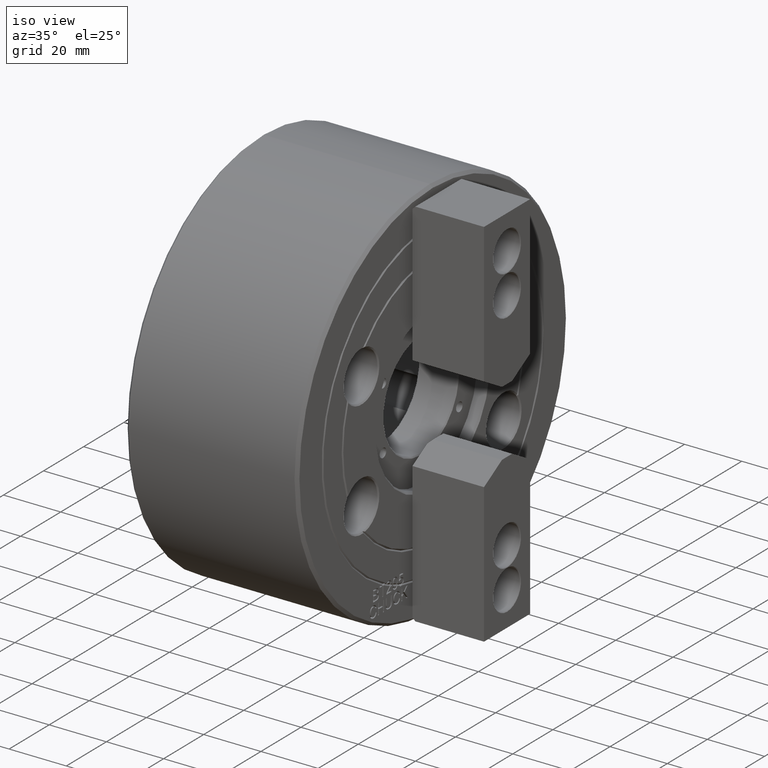
[diagram: clean part render]
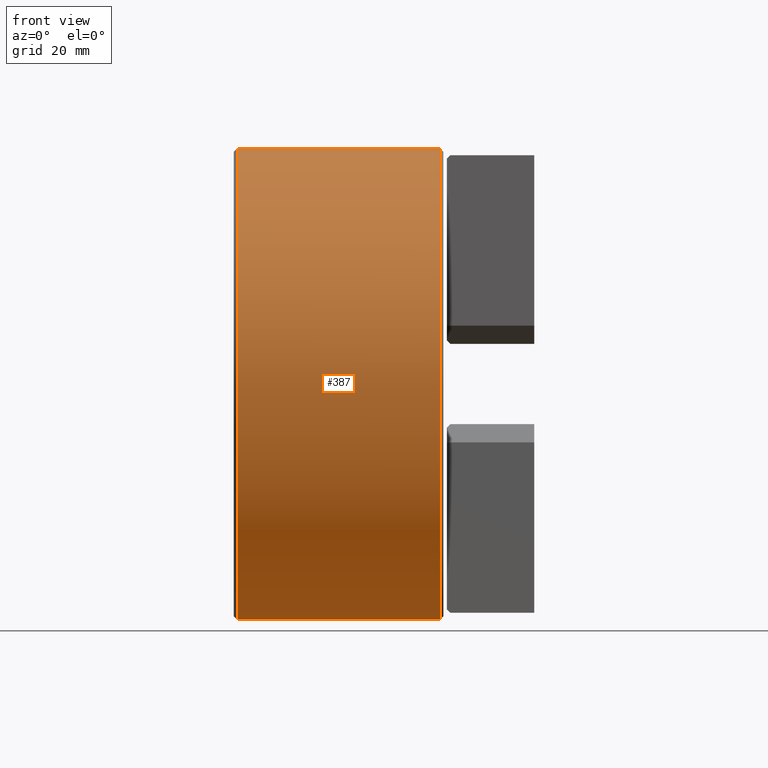
[diagram: tour spotlight — one face highlighted and labeled with its STEP entity id]
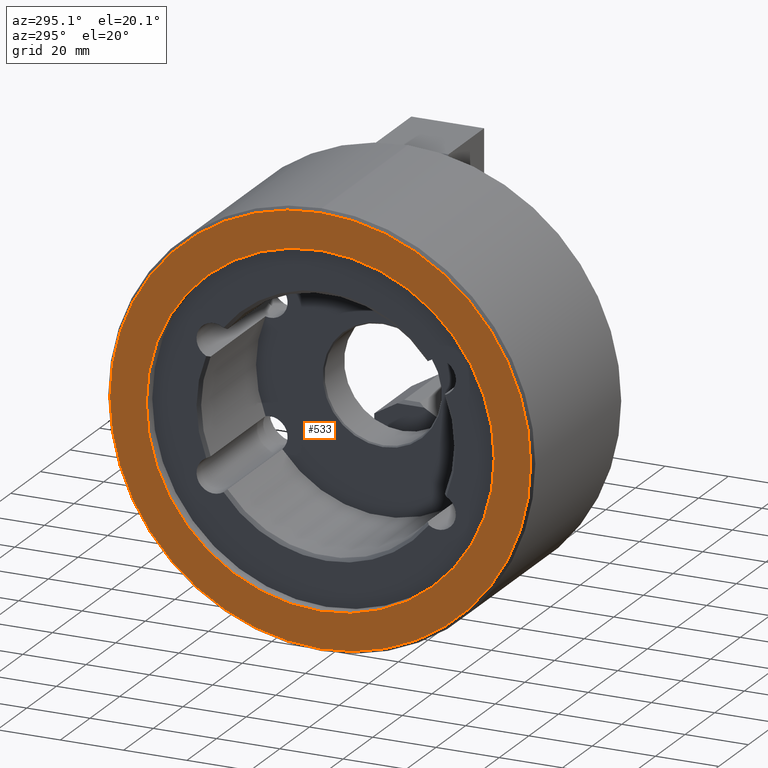
[diagram: tour spotlight — one face highlighted and labeled with its STEP entity id]
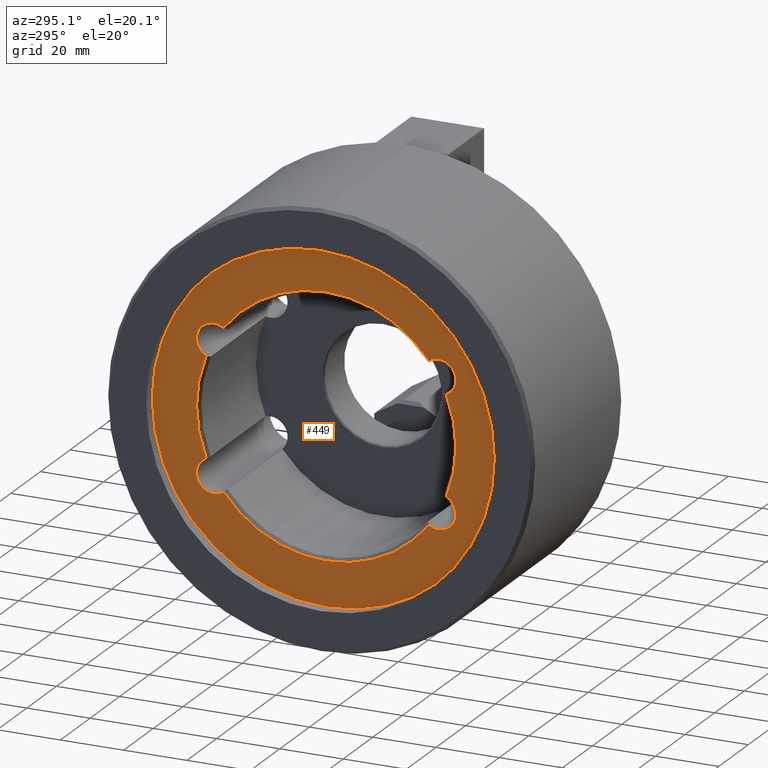
[diagram: tour spotlight — one face highlighted and labeled with its STEP entity id]
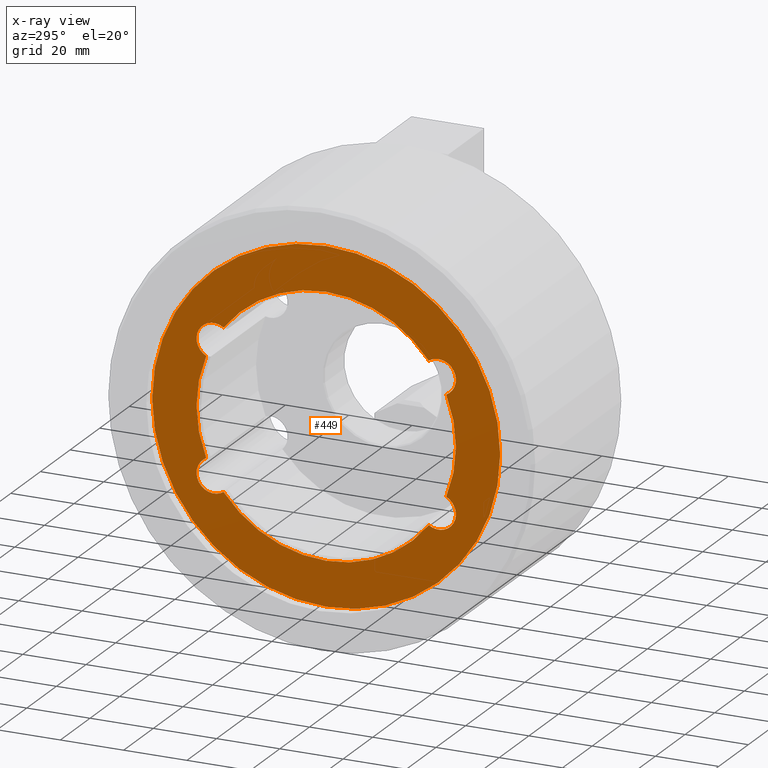
[diagram: x-ray of the same camera — body ghosted, this tour face saturated]
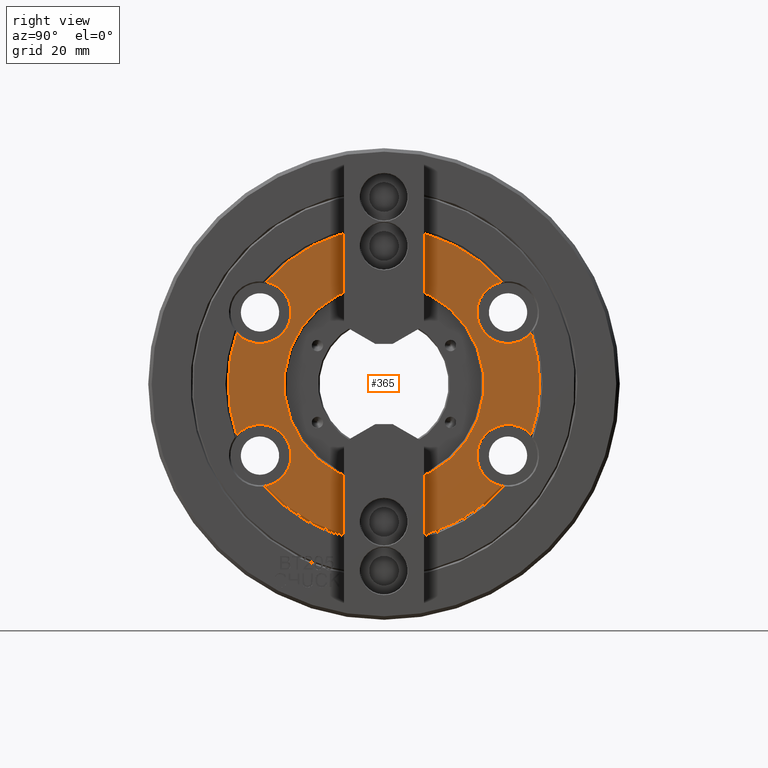
[diagram: tour spotlight — one face highlighted and labeled with its STEP entity id]
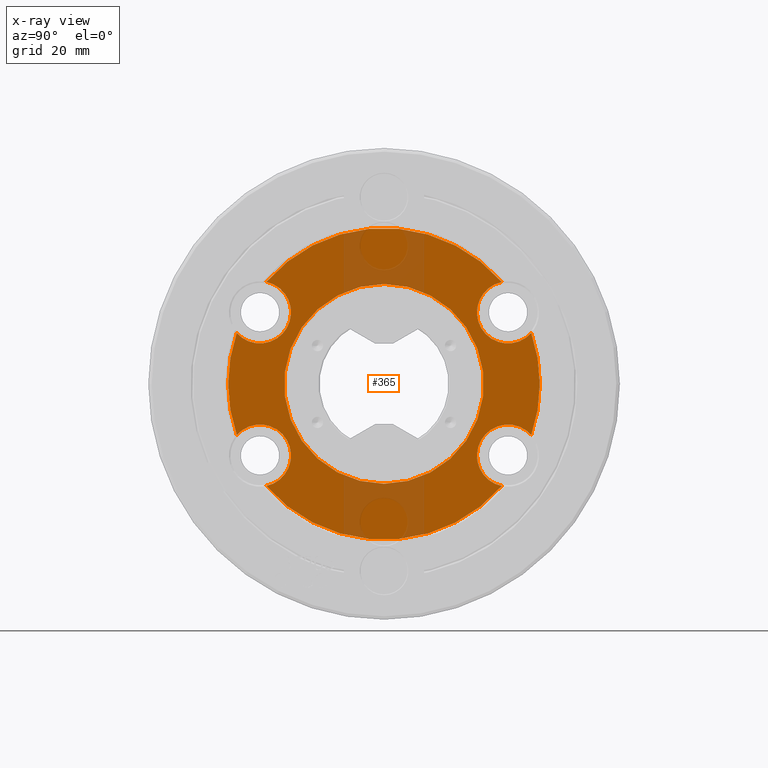
[diagram: x-ray of the same camera — body ghosted, this tour face saturated]
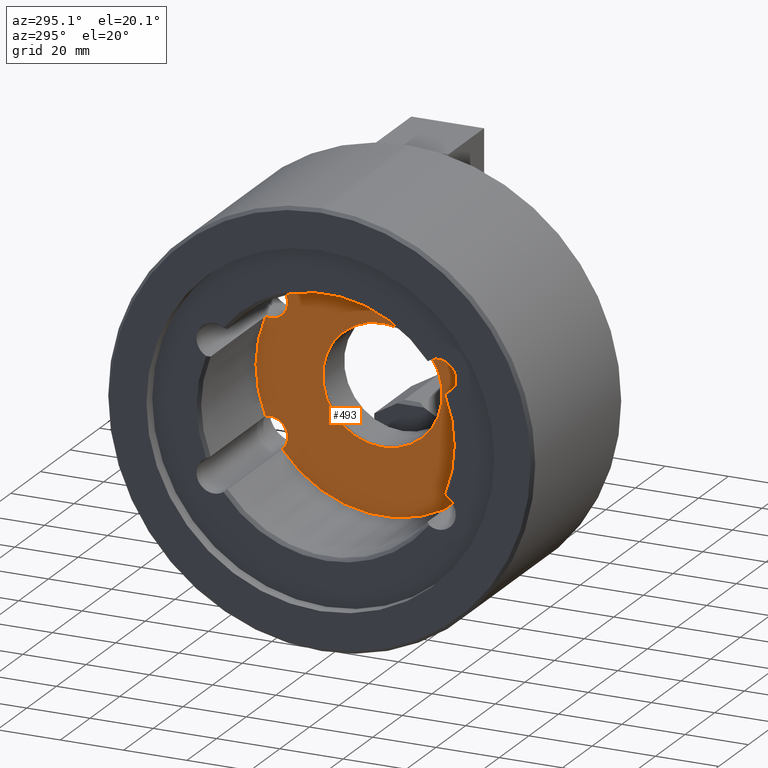
[diagram: tour spotlight — one face highlighted and labeled with its STEP entity id]
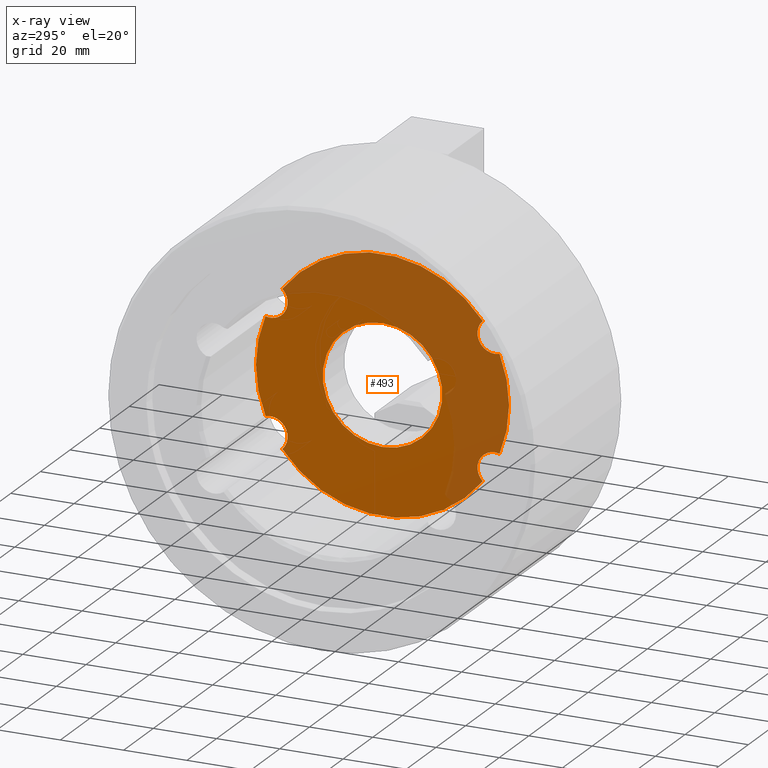
[diagram: x-ray of the same camera — body ghosted, this tour face saturated]
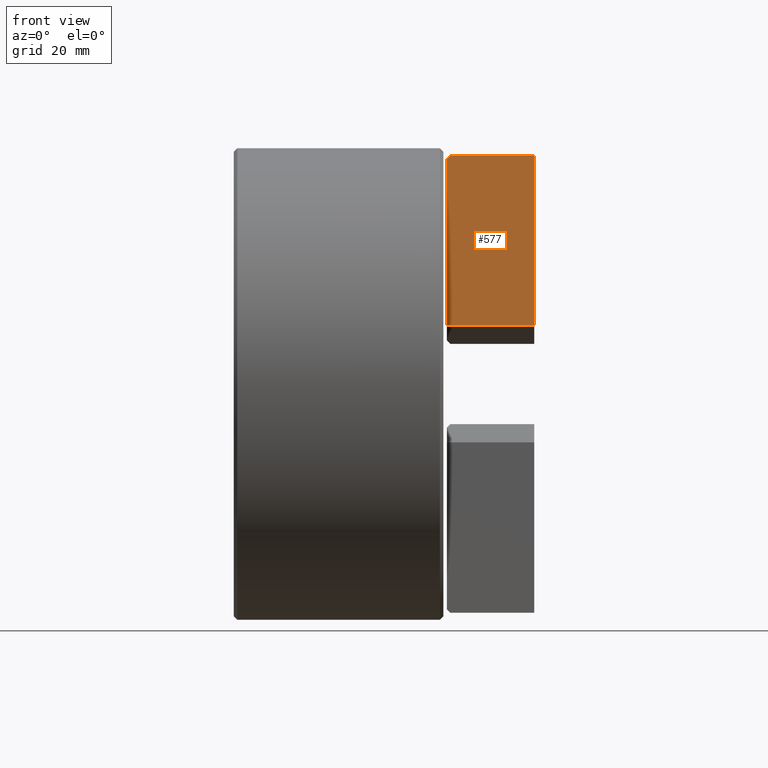
[diagram: tour spotlight — one face highlighted and labeled with its STEP entity id]
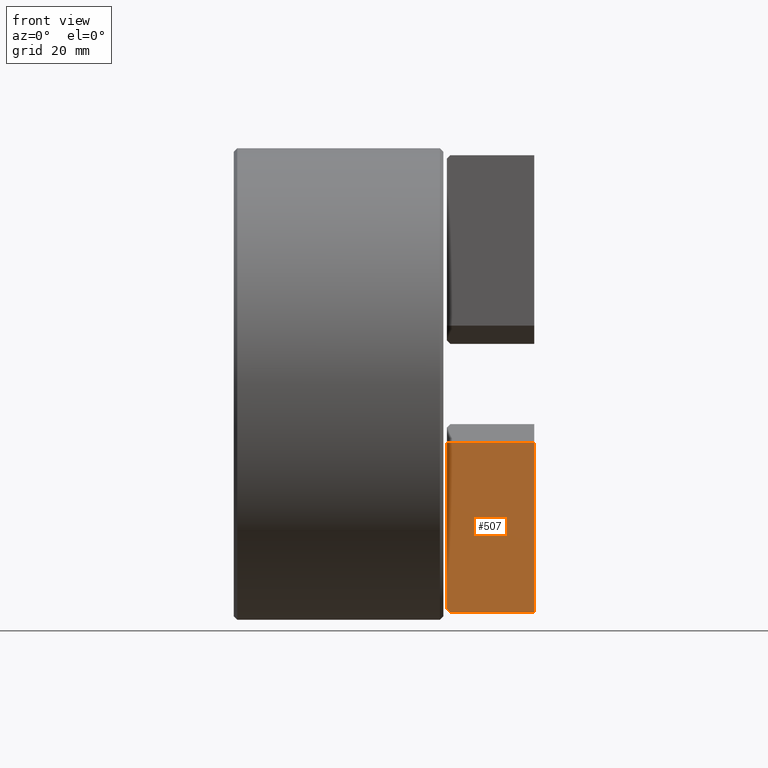
[diagram: tour spotlight — one face highlighted and labeled with its STEP entity id]
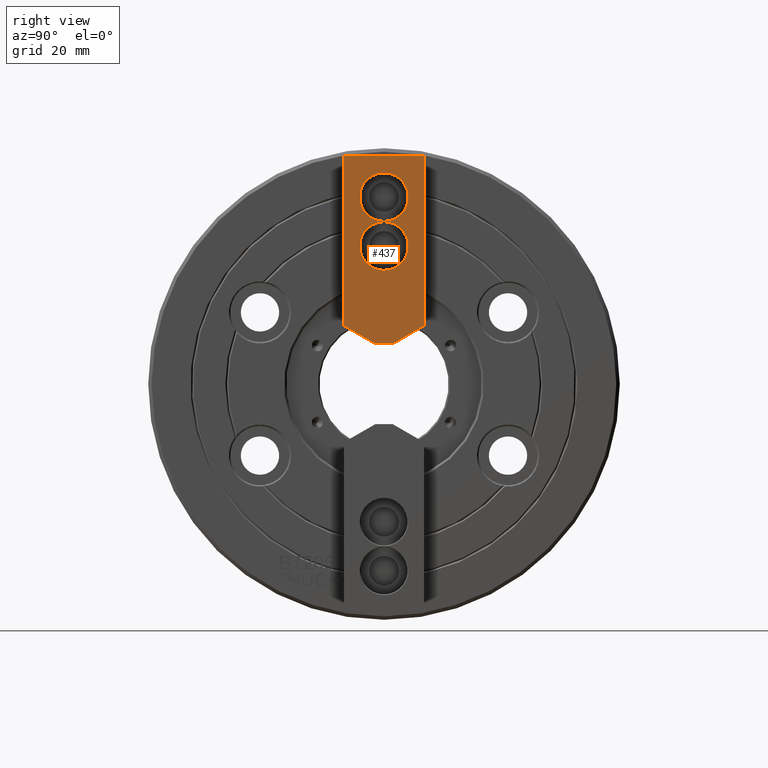
[diagram: tour spotlight — one face highlighted and labeled with its STEP entity id]
A machine part: a face-by-face anatomy tour. The part has 195 B-rep faces; the first image is the clean iso view, then the 8 largest visible faces are spotlighted one at a time (largest first), each with its STEP entity span.

Face 1 — front view, entity #387. In plain terms, the highlighted cylindrical surface (bore or boss wall) has radius 67.5 mm, axis along (1, -0, 0).
Definition (entity closure, byte-faithful):
#387 = ADVANCED_FACE( '', ( #904, #905 ), #906, .T. );
#904 = FACE_OUTER_BOUND( '', #1584, .T. );
#905 = FACE_OUTER_BOUND( '', #1585, .T. );
#906 = CYLINDRICAL_SURFACE( '', #1586, 67.5000000000000 );
#1584 = EDGE_LOOP( '', ( #2716 ) );
#1585 = EDGE_LOOP( '', ( #2717 ) );
#1586 = AXIS2_PLACEMENT_3D( '', #2718, #2719, #2720 );
#2716 = ORIENTED_EDGE( '', *, *, #4309, .T. );
#2717 = ORIENTED_EDGE( '', *, *, #4010, .F. );
#2718 = CARTESIAN_POINT( '', ( -60.0075000000000, 0.000000000000000, -1.54074395550979E-030 ) );
#2719 = DIRECTION( '', ( 1.00000000000000, -0.000000000000000, 1.28379282215539E-032 ) );
#2720 = DIRECTION( '', ( -1.28379282215539E-032, 0.000000000000000, 1.00000000000000 ) );
#4010 = EDGE_CURVE( '', #4655, #4655, #4656, .T. );
#4309 = EDGE_CURVE( '', #5140, #5140, #5141, .T. );
#4655 = VERTEX_POINT( '', #5588 );
#4656 = CIRCLE( '', #5589, 67.5000000000000 );
#5140 = VERTEX_POINT( '', #6660 );
#5141 = CIRCLE( '', #6661, 67.5000000000000 );
#5588 = CARTESIAN_POINT( '', ( -29.0000000000000, 0.000000000000000, 67.5000000000000 ) );
#5589 = AXIS2_PLACEMENT_3D( '', #7684, #7685, #7686 );
#6660 = CARTESIAN_POINT( '', ( 29.0000000000000, 0.000000000000000, 67.5000000000000 ) );
#6661 = AXIS2_PLACEMENT_3D( '', #7926, #7927, #7928 );
#7684 = CARTESIAN_POINT( '', ( -29.0000000000000, 0.000000000000000, -1.14267189617996E-030 ) );
#7685 = DIRECTION( '', ( -1.00000000000000, 0.000000000000000, -1.28379282215539E-032 ) );
#7686 = DIRECTION( '', ( -1.28379282215539E-032, 0.000000000000000, 1.00000000000000 ) );
#7926 = CARTESIAN_POINT( '', ( 29.0000000000000, 0.000000000000000, -3.98072059329832E-031 ) );
#7927 = DIRECTION( '', ( -1.00000000000000, 0.000000000000000, -1.28379282215539E-032 ) );
#7928 = DIRECTION( '', ( -1.28379282215539E-032, 0.000000000000000, 1.00000000000000 ) );

Face 2 — auxiliary view, entity #533. In plain terms, the highlighted planar face has unit normal (-1, 0, -0).
Definition (entity closure, byte-faithful):
#533 = ADVANCED_FACE( '', ( #1155, #1156 ), #1157, .T. );
#1155 = FACE_OUTER_BOUND( '', #1841, .T. );
#1156 = FACE_BOUND( '', #1842, .T. );
#1157 = PLANE( '', #1843 );
#1841 = EDGE_LOOP( '', ( #3496 ) );
#1842 = EDGE_LOOP( '', ( #3497 ) );
#1843 = AXIS2_PLACEMENT_3D( '', #3498, #3499, #3500 );
#3496 = ORIENTED_EDGE( '', *, *, #4011, .T. );
#3497 = ORIENTED_EDGE( '', *, *, #4547, .F. );
#3498 = CARTESIAN_POINT( '', ( -29.9985463069267, 0.000000000000000, 55.0000000000000 ) );
#3499 = DIRECTION( '', ( -1.00000000000000, 0.000000000000000, -1.28379282215539E-032 ) );
#3500 = DIRECTION( '', ( -1.28379282215539E-032, 0.000000000000000, 1.00000000000000 ) );
#4011 = EDGE_CURVE( '', #4657, #4657, #4658, .T. );
#4547 = EDGE_CURVE( '', #5467, #5467, #5468, .T. );
#4657 = VERTEX_POINT( '', #5590 );
#4658 = CIRCLE( '', #5591, 66.5000000000000 );
#5467 = VERTEX_POINT( '', #7471 );
#5468 = CIRCLE( '', #7472, 55.0000000000000 );
#5590 = CARTESIAN_POINT( '', ( -29.9985463069267, 0.000000000000000, 66.5000000000000 ) );
#5591 = AXIS2_PLACEMENT_3D( '', #7687, #7688, #7689 );
#7471 = CARTESIAN_POINT( '', ( -29.9985463069267, 0.000000000000000, 55.0000000000000 ) );
#7472 = AXIS2_PLACEMENT_3D( '', #8101, #8102, #8103 );
#7687 = CARTESIAN_POINT( '', ( -29.9985463069267, 0.000000000000000, -1.15549116199418E-030 ) );
#7688 = DIRECTION( '', ( -1.00000000000000, 0.000000000000000, -1.28379282215539E-032 ) );
#7689 = DIRECTION( '', ( -1.28379282215539E-032, 0.000000000000000, 1.00000000000000 ) );
#8101 = CARTESIAN_POINT( '', ( -29.9985463069267, 0.000000000000000, -1.15549116199418E-030 ) );
#8102 = DIRECTION( '', ( -1.00000000000000, 0.000000000000000, -1.28379282215539E-032 ) );
#8103 = DIRECTION( '', ( -1.28379282215539E-032, 0.000000000000000, 1.00000000000000 ) );

Face 3 — auxiliary view, entity #449. An x-ray twin of the same camera follows (body ghosted, this face saturated) — the face is partly hidden behind the body. In plain terms, the highlighted planar face has unit normal (-1, 0, -0).
Definition (entity closure, byte-faithful):
#449 = ADVANCED_FACE( '', ( #1007, #1008 ), #1009, .T. );
#1007 = FACE_BOUND( '', #1690, .T. );
#1008 = FACE_OUTER_BOUND( '', #1691, .T. );
#1009 = PLANE( '', #1692 );
#1690 = EDGE_LOOP( '', ( #3034, #3035, #3036, #3037, #3038, #3039, #3040, #3041 ) );
#1691 = EDGE_LOOP( '', ( #3042 ) );
#1692 = AXIS2_PLACEMENT_3D( '', #3043, #3044, #3045 );
#3034 = ORIENTED_EDGE( '', *, *, #4422, .F. );
#3035 = ORIENTED_EDGE( '', *, *, #4423, .T. );
#3036 = ORIENTED_EDGE( '', *, *, #4424, .F. );
#3037 = ORIENTED_EDGE( '', *, *, #4425, .T. );
#3038 = ORIENTED_EDGE( '', *, *, #4385, .F. );
#3039 = ORIENTED_EDGE( '', *, *, #4426, .T. );
#3040 = ORIENTED_EDGE( '', *, *, #4427, .F. );
#3041 = ORIENTED_EDGE( '', *, *, #4428, .T. );
#3042 = ORIENTED_EDGE( '', *, *, #4429, .T. );
#3043 = CARTESIAN_POINT( '', ( -25.9985463069267, 0.000000000000000, 41.0000000000000 ) );
#3044 = DIRECTION( '', ( -1.00000000000000, 0.000000000000000, -1.28379282215539E-032 ) );
#3045 = DIRECTION( '', ( -1.28379282215539E-032, 0.000000000000000, 1.00000000000000 ) );
#4385 = EDGE_CURVE( '', #5254, #5255, #5256, .T. );
#4422 = EDGE_CURVE( '', #5305, #5306, #5307, .T. );
#4423 = EDGE_CURVE( '', #5305, #5308, #5309, .T. );
#4424 = EDGE_CURVE( '', #5310, #5308, #5311, .T. );
#4425 = EDGE_CURVE( '', #5310, #5255, #5312, .T. );
#4426 = EDGE_CURVE( '', #5254, #5313, #5314, .T. );
#4427 = EDGE_CURVE( '', #5315, #5313, #5316, .T. );
#4428 = EDGE_CURVE( '', #5315, #5306, #5317, .T. );
#4429 = EDGE_CURVE( '', #5318, #5318, #5319, .T. );
#5254 = VERTEX_POINT( '', #6932 );
#5255 = VERTEX_POINT( '', #6933 );
#5256 = CIRCLE( '', #6934, 41.0000000000000 );
#5305 = VERTEX_POINT( '', #7039 );
#5306 = VERTEX_POINT( '', #7040 );
#5307 = CIRCLE( '', #7041, 41.0000000000000 );
#5308 = VERTEX_POINT( '', #7042 );
#5309 = CIRCLE( '', #7043, 5.50000000000000 );
#5310 = VERTEX_POINT( '', #7044 );
#5311 = CIRCLE( '', #7045, 41.0000000000000 );
#5312 = CIRCLE( '', #7046, 5.50000000000000 );
#5313 = VERTEX_POINT( '', #7047 );
#5314 = CIRCLE( '', #7048, 5.50000000000000 );
#5315 = VERTEX_POINT( '', #7049 );
#5316 = CIRCLE( '', #7050, 41.0000000000000 );
#5317 = CIRCLE( '', #7051, 5.50000000000000 );
#5318 = VERTEX_POINT( '', #7052 );
#5319 = CIRCLE( '', #7053, 55.0000000000000 );
#6932 = CARTESIAN_POINT( '', ( -25.9985463069267, -32.4437555084688, 25.0679621929407 ) );
#6933 = CARTESIAN_POINT( '', ( -25.9985463069267, 32.4437555084688, 25.0679621929406 ) );
#6934 = AXIS2_PLACEMENT_3D( '', #7991, #7992, #7993 );
#7039 = CARTESIAN_POINT( '', ( -25.9985463069267, 32.4437555084688, -25.0679621929406 ) );
#7040 = CARTESIAN_POINT( '', ( -25.9985463069267, -32.4437555084688, -25.0679621929406 ) );
#7041 = AXIS2_PLACEMENT_3D( '', #8015, #8016, #8017 );
#7042 = CARTESIAN_POINT( '', ( -25.9985463069267, 37.9313698344289, -15.5631353680350 ) );
#7043 = AXIS2_PLACEMENT_3D( '', #8018, #8019, #8020 );
#7044 = CARTESIAN_POINT( '', ( -25.9985463069267, 37.9313698344289, 15.5631353680350 ) );
#7045 = AXIS2_PLACEMENT_3D( '', #8021, #8022, #8023 );
#7046 = AXIS2_PLACEMENT_3D( '', #8024, #8025, #8026 );
#7047 = CARTESIAN_POINT( '', ( -25.9985463069267, -37.9313698344289, 15.5631353680350 ) );
#7048 = AXIS2_PLACEMENT_3D( '', #8027, #8028, #8029 );
#7049 = CARTESIAN_POINT( '', ( -25.9985463069267, -37.9313698344289, -15.5631353680350 ) );
#7050 = AXIS2_PLACEMENT_3D( '', #8030, #8031, #8032 );
#7051 = AXIS2_PLACEMENT_3D( '', #8033, #8034, #8035 );
#7052 = CARTESIAN_POINT( '', ( -25.9985463069267, 0.000000000000000, 55.0000000000000 ) );
#7053 = AXIS2_PLACEMENT_3D( '', #8036, #8037, #8038 );
#7991 = CARTESIAN_POINT( '', ( -25.9985463069267, 0.000000000000000, -1.10413944910796E-030 ) );
#7992 = DIRECTION( '', ( -1.00000000000000, 0.000000000000000, -1.28379282215539E-032 ) );
#7993 = DIRECTION( '', ( -1.28379282215539E-032, 0.000000000000000, 1.00000000000000 ) );
#8015 = CARTESIAN_POINT( '', ( -25.9985463069267, 0.000000000000000, -1.10413944910796E-030 ) );
#8016 = DIRECTION( '', ( -1.00000000000000, 0.000000000000000, -1.28379282215539E-032 ) );
#8017 = DIRECTION( '', ( -1.28379282215539E-032, 0.000000000000000, 1.00000000000000 ) );
#8018 = CARTESIAN_POINT( '', ( -25.9985463069267, 35.5070415551620, -20.5000000000000 ) );
#8019 = DIRECTION( '', ( 1.00000000000000, 0.000000000000000, 1.28379282215539E-032 ) );
#8020 = DIRECTION( '', ( 1.28379282215539E-032, 0.000000000000000, -1.00000000000000 ) );
#8021 = CARTESIAN_POINT( '', ( -25.9985463069267, 0.000000000000000, -1.10413944910796E-030 ) );
#8022 = DIRECTION( '', ( -1.00000000000000, 0.000000000000000, -1.28379282215539E-032 ) );
#8023 = DIRECTION( '', ( -1.28379282215539E-032, 0.000000000000000, 1.00000000000000 ) );
#8024 = CARTESIAN_POINT( '', ( -25.9985463069267, 35.5070415551620, 20.5000000000000 ) );
#8025 = DIRECTION( '', ( 1.00000000000000, 0.000000000000000, 1.28379282215539E-032 ) );
#8026 = DIRECTION( '', ( 1.28379282215539E-032, 0.000000000000000, -1.00000000000000 ) );
#8027 = CARTESIAN_POINT( '', ( -25.9985463069267, -35.5070415551620, 20.5000000000000 ) );
#8028 = DIRECTION( '', ( 1.00000000000000, -3.21436739558943E-064, 1.28379282215539E-032 ) );
#8029 = DIRECTION( '', ( -1.28379282215539E-032, 1.22460635382238E-016, 1.00000000000000 ) );
#8030 = CARTESIAN_POINT( '', ( -25.9985463069267, 0.000000000000000, -1.10413944910796E-030 ) );
#8031 = DIRECTION( '', ( -1.00000000000000, 0.000000000000000, -1.28379282215539E-032 ) );
#8032 = DIRECTION( '', ( -1.28379282215539E-032, 0.000000000000000, 1.00000000000000 ) );
#8033 = CARTESIAN_POINT( '', ( -25.9985463069267, -35.5070415551620, -20.5000000000000 ) );
#8034 = DIRECTION( '', ( 1.00000000000000, -3.21436739558943E-064, 1.28379282215539E-032 ) );
#8035 = DIRECTION( '', ( -1.28379282215539E-032, 1.22460635382238E-016, 1.00000000000000 ) );
#8036 = CARTESIAN_POINT( '', ( -25.9985463069267, 0.000000000000000, -1.10413944910796E-030 ) );
#8037 = DIRECTION( '', ( -1.00000000000000, 0.000000000000000, -1.28379282215539E-032 ) );
#8038 = DIRECTION( '', ( -1.28379282215539E-032, 0.000000000000000, 1.00000000000000 ) );

Face 4 — right view, entity #365. An x-ray twin of the same camera follows (body ghosted, this face saturated) — the face is partly hidden behind the body. In plain terms, the highlighted planar face has unit normal (1, 0, 0).
Definition (entity closure, byte-faithful):
#365 = ADVANCED_FACE( '', ( #870, #871 ), #872, .T. );
#870 = FACE_OUTER_BOUND( '', #1550, .T. );
#871 = FACE_BOUND( '', #1551, .T. );
#872 = PLANE( '', #1552 );
#1550 = EDGE_LOOP( '', ( #2615, #2616, #2617, #2618, #2619, #2620, #2621, #2622 ) );
#1551 = EDGE_LOOP( '', ( #2623 ) );
#1552 = AXIS2_PLACEMENT_3D( '', #2624, #2625, #2626 );
#2615 = ORIENTED_EDGE( '', *, *, #4262, .F. );
#2616 = ORIENTED_EDGE( '', *, *, #4263, .T. );
#2617 = ORIENTED_EDGE( '', *, *, #4109, .F. );
#2618 = ORIENTED_EDGE( '', *, *, #4116, .T. );
#2619 = ORIENTED_EDGE( '', *, *, #4264, .F. );
#2620 = ORIENTED_EDGE( '', *, *, #4265, .T. );
#2621 = ORIENTED_EDGE( '', *, *, #4266, .F. );
#2622 = ORIENTED_EDGE( '', *, *, #4267, .T. );
#2623 = ORIENTED_EDGE( '', *, *, #4268, .T. );
#2624 = CARTESIAN_POINT( '', ( 30.0014536930733, 0.000000000000000, 44.6000000000000 ) );
#2625 = DIRECTION( '', ( 1.00000000000000, 0.000000000000000, 1.28379282215539E-032 ) );
#2626 = DIRECTION( '', ( 1.28379282215539E-032, 0.000000000000000, -1.00000000000000 ) );
#4109 = EDGE_CURVE( '', #4826, #4827, #4828, .T. );
#4116 = EDGE_CURVE( '', #4826, #4835, #4837, .F. );
#4262 = EDGE_CURVE( '', #5073, #5074, #5075, .T. );
#4263 = EDGE_CURVE( '', #5073, #4827, #5076, .F. );
#4264 = EDGE_CURVE( '', #5077, #4835, #5078, .T. );
#4265 = EDGE_CURVE( '', #5077, #5079, #5080, .F. );
#4266 = EDGE_CURVE( '', #5081, #5079, #5082, .T. );
#4267 = EDGE_CURVE( '', #5081, #5074, #5083, .F. );
#4268 = EDGE_CURVE( '', #5084, #5084, #5085, .T. );
#4826 = VERTEX_POINT( '', #5936 );
#4827 = VERTEX_POINT( '', #5937 );
#4828 = CIRCLE( '', #5938, 44.6000000000000 );
#4835 = VERTEX_POINT( '', #5951 );
#4837 = CIRCLE( '', #5956, 8.90000000000000 );
#5073 = VERTEX_POINT( '', #6557 );
#5074 = VERTEX_POINT( '', #6558 );
#5075 = CIRCLE( '', #6559, 44.6000000000000 );
#5076 = CIRCLE( '', #6560, 8.90000000000000 );
#5077 = VERTEX_POINT( '', #6561 );
#5078 = CIRCLE( '', #6562, 44.6000000000000 );
#5079 = VERTEX_POINT( '', #6563 );
#5080 = CIRCLE( '', #6564, 8.90000000000000 );
#5081 = VERTEX_POINT( '', #6565 );
#5082 = CIRCLE( '', #6566, 44.6000000000000 );
#5083 = CIRCLE( '', #6567, 8.90000000000000 );
#5084 = VERTEX_POINT( '', #6568 );
#5085 = CIRCLE( '', #6569, 28.6000000000000 );
#5936 = CARTESIAN_POINT( '', ( 30.0014536930733, 42.1503977591026, 14.5775158634603 ) );
#5937 = CARTESIAN_POINT( '', ( 30.0014536930733, 42.1503977591026, -14.5775158634603 ) );
#5938 = AXIS2_PLACEMENT_3D( '', #7782, #7783, #7784 );
#5951 = CARTESIAN_POINT( '', ( 30.0014536930733, 33.6996979413786, 29.2145573072713 ) );
#5956 = AXIS2_PLACEMENT_3D( '', #7788, #7789, #7790 );
#6557 = CARTESIAN_POINT( '', ( 30.0014536930733, 33.6996979413786, -29.2145573072713 ) );
#6558 = CARTESIAN_POINT( '', ( 30.0014536930733, -33.6996979413786, -29.2145573072713 ) );
#6559 = AXIS2_PLACEMENT_3D( '', #7894, #7895, #7896 );
#6560 = AXIS2_PLACEMENT_3D( '', #7897, #7898, #7899 );
#6561 = CARTESIAN_POINT( '', ( 30.0014536930733, -33.6996979413786, 29.2145573072713 ) );
#6562 = AXIS2_PLACEMENT_3D( '', #7900, #7901, #7902 );
#6563 = CARTESIAN_POINT( '', ( 30.0014536930733, -42.1503977591026, 14.5775158634603 ) );
#6564 = AXIS2_PLACEMENT_3D( '', #7903, #7904, #7905 );
#6565 = CARTESIAN_POINT( '', ( 30.0014536930733, -42.1503977591026, -14.5775158634603 ) );
#6566 = AXIS2_PLACEMENT_3D( '', #7906, #7907, #7908 );
#6567 = AXIS2_PLACEMENT_3D( '', #7909, #7910, #7911 );
#6568 = CARTESIAN_POINT( '', ( 30.0014536930733, 0.000000000000000, 28.6000000000000 ) );
#6569 = AXIS2_PLACEMENT_3D( '', #7912, #7913, #7914 );
#7782 = CARTESIAN_POINT( '', ( 30.0014536930733, 0.000000000000000, -3.85215468700947E-031 ) );
#7783 = DIRECTION( '', ( -1.00000000000000, 0.000000000000000, -1.28379282215539E-032 ) );
#7784 = DIRECTION( '', ( -1.28379282215539E-032, 0.000000000000000, 1.00000000000000 ) );
#7788 = CARTESIAN_POINT( '', ( 30.0014536930733, 35.5070415551620, 20.5000000000000 ) );
#7789 = DIRECTION( '', ( 1.00000000000000, 0.000000000000000, 1.28379282215539E-032 ) );
#7790 = DIRECTION( '', ( 1.28379282215539E-032, 0.000000000000000, -1.00000000000000 ) );
#7894 = CARTESIAN_POINT( '', ( 30.0014536930733, 0.000000000000000, -3.85215468700947E-031 ) );
#7895 = DIRECTION( '', ( -1.00000000000000, 0.000000000000000, -1.28379282215539E-032 ) );
#7896 = DIRECTION( '', ( -1.28379282215539E-032, 0.000000000000000, 1.00000000000000 ) );
#7897 = CARTESIAN_POINT( '', ( 30.0014536930733, 35.5070415551620, -20.5000000000000 ) );
#7898 = DIRECTION( '', ( 1.00000000000000, 0.000000000000000, 1.28379282215539E-032 ) );
#7899 = DIRECTION( '', ( 1.28379282215539E-032, 0.000000000000000, -1.00000000000000 ) );
#7900 = CARTESIAN_POINT( '', ( 30.0014536930733, 0.000000000000000, -3.85215468700947E-031 ) );
#7901 = DIRECTION( '', ( -1.00000000000000, 0.000000000000000, -1.28379282215539E-032 ) );
#7902 = DIRECTION( '', ( -1.28379282215539E-032, 0.000000000000000, 1.00000000000000 ) );
#7903 = CARTESIAN_POINT( '', ( 30.0014536930733, -35.5070415551620, 20.5000000000000 ) );
#7904 = DIRECTION( '', ( 1.00000000000000, 2.45510954971797E-064, 1.28379282215539E-032 ) );
#7905 = DIRECTION( '', ( -1.28379282215539E-032, 1.22460635382238E-016, 1.00000000000000 ) );
#7906 = CARTESIAN_POINT( '', ( 30.0014536930733, 0.000000000000000, -3.85215468700947E-031 ) );
#7907 = DIRECTION( '', ( -1.00000000000000, 0.000000000000000, -1.28379282215539E-032 ) );
#7908 = DIRECTION( '', ( -1.28379282215539E-032, 0.000000000000000, 1.00000000000000 ) );
#7909 = CARTESIAN_POINT( '', ( 30.0014536930733, -35.5070415551620, -20.5000000000000 ) );
#7910 = DIRECTION( '', ( 1.00000000000000, 2.45510954971797E-064, 1.28379282215539E-032 ) );
#7911 = DIRECTION( '', ( -1.28379282215539E-032, 1.22460635382238E-016, 1.00000000000000 ) );
#7912 = CARTESIAN_POINT( '', ( 30.0014536930733, 0.000000000000000, -3.85215468700947E-031 ) );
#7913 = DIRECTION( '', ( -1.00000000000000, 0.000000000000000, -1.28379282215539E-032 ) );
#7914 = DIRECTION( '', ( -1.28379282215539E-032, 0.000000000000000, 1.00000000000000 ) );

Face 5 — auxiliary view, entity #493. An x-ray twin of the same camera follows (body ghosted, this face saturated) — the face is partly hidden behind the body. In plain terms, the highlighted planar face has unit normal (-1, 0, -0).
Definition (entity closure, byte-faithful):
#493 = ADVANCED_FACE( '', ( #1089, #1090 ), #1091, .T. );
#1089 = FACE_OUTER_BOUND( '', #1774, .T. );
#1090 = FACE_BOUND( '', #1775, .T. );
#1091 = PLANE( '', #1776 );
#1774 = EDGE_LOOP( '', ( #3310, #3311, #3312, #3313, #3314, #3315, #3316, #3317 ) );
#1775 = EDGE_LOOP( '', ( #3318 ) );
#1776 = AXIS2_PLACEMENT_3D( '', #3319, #3320, #3321 );
#3310 = ORIENTED_EDGE( '', *, *, #4196, .T. );
#3311 = ORIENTED_EDGE( '', *, *, #4505, .F. );
#3312 = ORIENTED_EDGE( '', *, *, #4327, .T. );
#3313 = ORIENTED_EDGE( '', *, *, #4506, .F. );
#3314 = ORIENTED_EDGE( '', *, *, #4218, .T. );
#3315 = ORIENTED_EDGE( '', *, *, #4498, .F. );
#3316 = ORIENTED_EDGE( '', *, *, #4338, .T. );
#3317 = ORIENTED_EDGE( '', *, *, #4476, .F. );
#3318 = ORIENTED_EDGE( '', *, *, #4321, .F. );
#3319 = CARTESIAN_POINT( '', ( 12.0014536930733, 0.000000000000000, 18.9000000000000 ) );
#3320 = DIRECTION( '', ( -1.00000000000000, 0.000000000000000, -1.28379282215539E-032 ) );
#3321 = DIRECTION( '', ( -1.28379282215539E-032, 0.000000000000000, 1.00000000000000 ) );
#4196 = EDGE_CURVE( '', #4968, #4969, #4970, .T. );
#4218 = EDGE_CURVE( '', #5004, #5005, #5006, .T. );
#4321 = EDGE_CURVE( '', #5156, #5156, #5157, .T. );
#4327 = EDGE_CURVE( '', #5165, #5166, #5167, .T. );
#4338 = EDGE_CURVE( '', #5186, #5183, #5187, .T. );
#4476 = EDGE_CURVE( '', #4968, #5183, #5385, .T. );
#4498 = EDGE_CURVE( '', #5186, #5005, #5411, .T. );
#4505 = EDGE_CURVE( '', #5165, #4969, #5421, .T. );
#4506 = EDGE_CURVE( '', #5004, #5166, #5422, .T. );
#4968 = VERTEX_POINT( '', #6335 );
#4969 = VERTEX_POINT( '', #6336 );
#4970 = CIRCLE( '', #6337, 40.0000000000000 );
#5004 = VERTEX_POINT( '', #6382 );
#5005 = VERTEX_POINT( '', #6383 );
#5006 = CIRCLE( '', #6384, 40.0000000000000 );
#5156 = VERTEX_POINT( '', #6685 );
#5157 = CIRCLE( '', #6686, 18.9000000000000 );
#5165 = VERTEX_POINT( '', #6698 );
#5166 = VERTEX_POINT( '', #6699 );
#5167 = CIRCLE( '', #6700, 40.0000000000000 );
#5183 = VERTEX_POINT( '', #6770 );
#5186 = VERTEX_POINT( '', #6774 );
#5187 = CIRCLE( '', #6775, 40.0000000000000 );
#5385 = CIRCLE( '', #7296, 5.50000000000000 );
#5411 = CIRCLE( '', #7355, 5.50000000000000 );
#5421 = CIRCLE( '', #7365, 5.50000000000000 );
#5422 = CIRCLE( '', #7366, 5.50000000000000 );
#6335 = CARTESIAN_POINT( '', ( 12.0014536930733, 31.6670776687398, -24.4375979163665 ) );
#6336 = CARTESIAN_POINT( '', ( 12.0014536930733, -31.6670776687398, -24.4375979163665 ) );
#6337 = AXIS2_PLACEMENT_3D( '', #7831, #7832, #7833 );
#6382 = CARTESIAN_POINT( '', ( 12.0014536930733, -31.6670776687398, 24.4375979163665 ) );
#6383 = CARTESIAN_POINT( '', ( 12.0014536930733, 31.6670776687398, 24.4375979163665 ) );
#6384 = AXIS2_PLACEMENT_3D( '', #7859, #7860, #7861 );
#6685 = CARTESIAN_POINT( '', ( 12.0014536930733, 0.000000000000000, 18.9000000000000 ) );
#6686 = AXIS2_PLACEMENT_3D( '', #7931, #7932, #7933 );
#6698 = CARTESIAN_POINT( '', ( 12.0014536930733, -36.9971194374129, -15.2056947665603 ) );
#6699 = CARTESIAN_POINT( '', ( 12.0014536930733, -36.9971194374129, 15.2056947665603 ) );
#6700 = AXIS2_PLACEMENT_3D( '', #7938, #7939, #7940 );
#6770 = CARTESIAN_POINT( '', ( 12.0014536930733, 36.9971194374129, -15.2056947665603 ) );
#6774 = CARTESIAN_POINT( '', ( 12.0014536930733, 36.9971194374129, 15.2056947665603 ) );
#6775 = AXIS2_PLACEMENT_3D( '', #7949, #7950, #7951 );
#7296 = AXIS2_PLACEMENT_3D( '', #8055, #8056, #8057 );
#7355 = AXIS2_PLACEMENT_3D( '', #8069, #8070, #8071 );
#7365 = AXIS2_PLACEMENT_3D( '', #8081, #8082, #8083 );
#7366 = AXIS2_PLACEMENT_3D( '', #8084, #8085, #8086 );
#7831 = CARTESIAN_POINT( '', ( 12.0014536930733, 0.000000000000000, -6.16298176688916E-031 ) );
#7832 = DIRECTION( '', ( -1.00000000000000, 0.000000000000000, -1.28379282215539E-032 ) );
#7833 = DIRECTION( '', ( -1.28379282215539E-032, 0.000000000000000, 1.00000000000000 ) );
#7859 = CARTESIAN_POINT( '', ( 12.0014536930733, 0.000000000000000, -6.16298176688916E-031 ) );
#7860 = DIRECTION( '', ( -1.00000000000000, 0.000000000000000, -1.28379282215539E-032 ) );
#7861 = DIRECTION( '', ( -1.28379282215539E-032, 0.000000000000000, 1.00000000000000 ) );
#7931 = CARTESIAN_POINT( '', ( 12.0014536930733, 0.000000000000000, -6.16298176688916E-031 ) );
#7932 = DIRECTION( '', ( -1.00000000000000, 0.000000000000000, -1.28379282215539E-032 ) );
#7933 = DIRECTION( '', ( -1.28379282215539E-032, 0.000000000000000, 1.00000000000000 ) );
#7938 = CARTESIAN_POINT( '', ( 12.0014536930733, 0.000000000000000, -6.16298176688916E-031 ) );
#7939 = DIRECTION( '', ( -1.00000000000000, 0.000000000000000, -1.28379282215539E-032 ) );
#7940 = DIRECTION( '', ( -1.28379282215539E-032, 0.000000000000000, 1.00000000000000 ) );
#7949 = CARTESIAN_POINT( '', ( 12.0014536930733, 0.000000000000000, -6.16298176688916E-031 ) );
#7950 = DIRECTION( '', ( -1.00000000000000, 0.000000000000000, -1.28379282215539E-032 ) );
#7951 = DIRECTION( '', ( -1.28379282215539E-032, 0.000000000000000, 1.00000000000000 ) );
#8055 = CARTESIAN_POINT( '', ( 12.0014536930733, 35.5070415551620, -20.5000000000000 ) );
#8056 = DIRECTION( '', ( -1.00000000000000, 0.000000000000000, -1.28379282215539E-032 ) );
#8057 = DIRECTION( '', ( -1.28379282215539E-032, 0.000000000000000, 1.00000000000000 ) );
#8069 = CARTESIAN_POINT( '', ( 12.0014536930733, 35.5070415551620, 20.5000000000000 ) );
#8070 = DIRECTION( '', ( -1.00000000000000, 0.000000000000000, -1.28379282215539E-032 ) );
#8071 = DIRECTION( '', ( -1.28379282215539E-032, 0.000000000000000, 1.00000000000000 ) );
#8081 = CARTESIAN_POINT( '', ( 12.0014536930733, -35.5070415551620, -20.5000000000000 ) );
#8082 = DIRECTION( '', ( -1.00000000000000, 0.000000000000000, -1.28379282215539E-032 ) );
#8083 = DIRECTION( '', ( 1.28379282215539E-032, -1.22460635382238E-016, -1.00000000000000 ) );
#8084 = CARTESIAN_POINT( '', ( 12.0014536930733, -35.5070415551620, 20.5000000000000 ) );
#8085 = DIRECTION( '', ( -1.00000000000000, 0.000000000000000, -1.28379282215539E-032 ) );
#8086 = DIRECTION( '', ( 1.28379282215539E-032, -1.22460635382238E-016, -1.00000000000000 ) );

Face 6 — front view, entity #577. In plain terms, the highlighted planar face has unit normal (0, -1, 0).
Definition (entity closure, byte-faithful):
#577 = ADVANCED_FACE( '', ( #1227 ), #1228, .T. );
#1227 = FACE_OUTER_BOUND( '', #1915, .T. );
#1228 = PLANE( '', #1916 );
#1915 = EDGE_LOOP( '', ( #3719, #3720, #3721, #3722, #3723 ) );
#1916 = AXIS2_PLACEMENT_3D( '', #3724, #3725, #3726 );
#3719 = ORIENTED_EDGE( '', *, *, #4589, .F. );
#3720 = ORIENTED_EDGE( '', *, *, #4590, .T. );
#3721 = ORIENTED_EDGE( '', *, *, #4403, .F. );
#3722 = ORIENTED_EDGE( '', *, *, #4077, .F. );
#3723 = ORIENTED_EDGE( '', *, *, #4183, .F. );
#3724 = CARTESIAN_POINT( '', ( 5.00145369307330, -11.5000000000000, 38.5000000000000 ) );
#3725 = DIRECTION( '', ( 0.000000000000000, -1.00000000000000, 0.000000000000000 ) );
#3726 = DIRECTION( '', ( 0.000000000000000, 0.000000000000000, -1.00000000000000 ) );
#4077 = EDGE_CURVE( '', #4773, #4775, #4776, .T. );
#4183 = EDGE_CURVE( '', #4945, #4773, #4947, .T. );
#4403 = EDGE_CURVE( '', #4775, #5279, #5280, .T. );
#4589 = EDGE_CURVE( '', #5513, #4945, #5514, .T. );
#4590 = EDGE_CURVE( '', #5513, #5279, #5515, .T. );
#4773 = VERTEX_POINT( '', #5844 );
#4775 = VERTEX_POINT( '', #5847 );
#4776 = LINE( '', #5848, #5849 );
#4945 = VERTEX_POINT( '', #6297 );
#4947 = LINE( '', #6300, #6301 );
#5279 = VERTEX_POINT( '', #6986 );
#5280 = LINE( '', #6987, #6988 );
#5513 = VERTEX_POINT( '', #7618 );
#5514 = LINE( '', #7619, #7620 );
#5515 = LINE( '', #7621, #7622 );
#5844 = CARTESIAN_POINT( '', ( 32.0014536930733, -11.5000000000000, 65.5000000000000 ) );
#5847 = CARTESIAN_POINT( '', ( 56.0014536930733, -11.5000000000000, 65.5000000000000 ) );
#5848 = CARTESIAN_POINT( '', ( 32.0014536930733, -11.5000000000000, 65.5000000000000 ) );
#5849 = VECTOR( '', #7745, 1000.00000000000 );
#6297 = CARTESIAN_POINT( '', ( 31.0014536930733, -11.5000000000000, 64.5000000000000 ) );
#6300 = CARTESIAN_POINT( '', ( 31.0014536930733, -11.5000000000000, 64.5000000000000 ) );
#6301 = VECTOR( '', #7827, 1000.00000000000 );
#6986 = CARTESIAN_POINT( '', ( 56.0014536930733, -11.5000000000000, 16.6961524227067 ) );
#6987 = CARTESIAN_POINT( '', ( 56.0014536930733, -11.5000000000000, 65.5000000000000 ) );
#6988 = VECTOR( '', #8006, 1000.00000000000 );
#7618 = CARTESIAN_POINT( '', ( 31.0014536930733, -11.5000000000000, 16.6961524227067 ) );
#7619 = CARTESIAN_POINT( '', ( 31.0014536930733, -11.5000000000000, 12.5000000000000 ) );
#7620 = VECTOR( '', #8122, 1000.00000000000 );
#7621 = CARTESIAN_POINT( '', ( 5.00145369307330, -11.5000000000000, 16.6961524227067 ) );
#7622 = VECTOR( '', #8123, 1000.00000000000 );
#7745 = DIRECTION( '', ( 1.00000000000000, 0.000000000000000, 0.000000000000000 ) );
#7827 = DIRECTION( '', ( 0.707106781186548, 0.000000000000000, 0.707106781186548 ) );
#8006 = DIRECTION( '', ( 0.000000000000000, 0.000000000000000, -1.00000000000000 ) );
#8122 = DIRECTION( '', ( 0.000000000000000, 0.000000000000000, 1.00000000000000 ) );
#8123 = DIRECTION( '', ( 1.00000000000000, 0.000000000000000, 0.000000000000000 ) );

Face 7 — front view, entity #507. In plain terms, the highlighted planar face has unit normal (0, 1, -0).
Definition (entity closure, byte-faithful):
#507 = ADVANCED_FACE( '', ( #1113 ), #1114, .F. );
#1113 = FACE_OUTER_BOUND( '', #1799, .T. );
#1114 = PLANE( '', #1800 );
#1799 = EDGE_LOOP( '', ( #3396, #3397, #3398, #3399, #3400 ) );
#1800 = AXIS2_PLACEMENT_3D( '', #3401, #3402, #3403 );
#3396 = ORIENTED_EDGE( '', *, *, #4519, .F. );
#3397 = ORIENTED_EDGE( '', *, *, #4063, .T. );
#3398 = ORIENTED_EDGE( '', *, *, #4520, .T. );
#3399 = ORIENTED_EDGE( '', *, *, #4376, .T. );
#3400 = ORIENTED_EDGE( '', *, *, #4372, .T. );
#3401 = CARTESIAN_POINT( '', ( 5.00145369307330, -11.5000000000000, -38.5000000000000 ) );
#3402 = DIRECTION( '', ( 1.57214084700305E-048, 1.00000000000000, -1.22460635382238E-016 ) );
#3403 = DIRECTION( '', ( -2.56758564431078E-032, 1.22460635382238E-016, 1.00000000000000 ) );
#4063 = EDGE_CURVE( '', #4750, #4751, #4752, .T. );
#4372 = EDGE_CURVE( '', #5237, #5235, #5238, .T. );
#4376 = EDGE_CURVE( '', #5242, #5237, #5243, .T. );
#4519 = EDGE_CURVE( '', #4750, #5235, #5436, .T. );
#4520 = EDGE_CURVE( '', #4751, #5242, #5437, .T. );
#4750 = VERTEX_POINT( '', #5815 );
#4751 = VERTEX_POINT( '', #5816 );
#4752 = LINE( '', #5817, #5818 );
#5235 = VERTEX_POINT( '', #6895 );
#5237 = VERTEX_POINT( '', #6898 );
#5238 = LINE( '', #6899, #6900 );
#5242 = VERTEX_POINT( '', #6906 );
#5243 = LINE( '', #6907, #6908 );
#5436 = LINE( '', #7424, #7425 );
#5437 = LINE( '', #7426, #7427 );
#5815 = CARTESIAN_POINT( '', ( 31.0014536930733, -11.5000000000000, -16.6961524227067 ) );
#5816 = CARTESIAN_POINT( '', ( 31.0014536930733, -11.5000000000000, -64.5000000000000 ) );
#5817 = CARTESIAN_POINT( '', ( 31.0014536930733, -11.5000000000000, -12.5000000000000 ) );
#5818 = VECTOR( '', #7726, 1000.00000000000 );
#6895 = CARTESIAN_POINT( '', ( 56.0014536930733, -11.5000000000000, -16.6961524227067 ) );
#6898 = CARTESIAN_POINT( '', ( 56.0014536930733, -11.5000000000000, -65.5000000000000 ) );
#6899 = CARTESIAN_POINT( '', ( 56.0014536930733, -11.5000000000000, -65.5000000000000 ) );
#6900 = VECTOR( '', #7980, 1000.00000000000 );
#6906 = CARTESIAN_POINT( '', ( 32.0014536930733, -11.5000000000000, -65.5000000000000 ) );
#6907 = CARTESIAN_POINT( '', ( 32.0014536930733, -11.5000000000000, -65.5000000000000 ) );
#6908 = VECTOR( '', #7983, 1000.00000000000 );
#7424 = CARTESIAN_POINT( '', ( 5.00145369307330, -11.5000000000000, -16.6961524227067 ) );
#7425 = VECTOR( '', #8088, 1000.00000000000 );
#7426 = CARTESIAN_POINT( '', ( 31.0014536930733, -11.5000000000000, -64.5000000000000 ) );
#7427 = VECTOR( '', #8089, 1000.00000000000 );
#7726 = DIRECTION( '', ( 2.56758564431078E-032, -1.22460635382238E-016, -1.00000000000000 ) );
#7980 = DIRECTION( '', ( -2.56758564431078E-032, 1.22460635382238E-016, 1.00000000000000 ) );
#7983 = DIRECTION( '', ( 1.00000000000000, 1.57214084700305E-048, 2.56758564431078E-032 ) );
#8088 = DIRECTION( '', ( 1.00000000000000, 1.57214084700305E-048, 2.56758564431078E-032 ) );
#8089 = DIRECTION( '', ( 0.707106781186548, -8.65927457071935E-017, -0.707106781186548 ) );

Face 8 — right view, entity #437. In plain terms, the highlighted planar face has unit normal (1, 0, 0).
Definition (entity closure, byte-faithful):
#437 = ADVANCED_FACE( '', ( #987, #988, #989 ), #990, .T. );
#987 = FACE_BOUND( '', #1670, .T. );
#988 = FACE_BOUND( '', #1671, .T. );
#989 = FACE_OUTER_BOUND( '', #1672, .T. );
#990 = PLANE( '', #1673 );
#1670 = EDGE_LOOP( '', ( #2984 ) );
#1671 = EDGE_LOOP( '', ( #2985 ) );
#1672 = EDGE_LOOP( '', ( #2986, #2987, #2988, #2989, #2990, #2991 ) );
#1673 = AXIS2_PLACEMENT_3D( '', #2992, #2993, #2994 );
#2984 = ORIENTED_EDGE( '', *, *, #4401, .T. );
#2985 = ORIENTED_EDGE( '', *, *, #4399, .T. );
#2986 = ORIENTED_EDGE( '', *, *, #4128, .T. );
#2987 = ORIENTED_EDGE( '', *, *, #4106, .T. );
#2988 = ORIENTED_EDGE( '', *, *, #4402, .F. );
#2989 = ORIENTED_EDGE( '', *, *, #4078, .F. );
#2990 = ORIENTED_EDGE( '', *, *, #4403, .T. );
#2991 = ORIENTED_EDGE( '', *, *, #4404, .T. );
#2992 = CARTESIAN_POINT( '', ( 56.0014536930733, -11.5000000000000, 65.5000000000000 ) );
#2993 = DIRECTION( '', ( 1.00000000000000, 0.000000000000000, 0.000000000000000 ) );
#2994 = DIRECTION( '', ( 0.000000000000000, 0.000000000000000, -1.00000000000000 ) );
#4078 = EDGE_CURVE( '', #4775, #4771, #4777, .T. );
#4106 = EDGE_CURVE( '', #4822, #4820, #4823, .T. );
#4128 = EDGE_CURVE( '', #4857, #4822, #4858, .T. );
#4399 = EDGE_CURVE( '', #5273, #5273, #5274, .F. );
#4401 = EDGE_CURVE( '', #5276, #5276, #5277, .F. );
#4402 = EDGE_CURVE( '', #4771, #4820, #5278, .T. );
#4403 = EDGE_CURVE( '', #4775, #5279, #5280, .T. );
#4404 = EDGE_CURVE( '', #5279, #4857, #5281, .T. );
#4771 = VERTEX_POINT( '', #5841 );
#4775 = VERTEX_POINT( '', #5847 );
#4777 = LINE( '', #5850, #5851 );
#4820 = VERTEX_POINT( '', #5927 );
#4822 = VERTEX_POINT( '', #5930 );
#4823 = LINE( '', #5931, #5932 );
#4857 = VERTEX_POINT( '', #5988 );
#4858 = LINE( '', #5989, #5990 );
#5273 = VERTEX_POINT( '', #6979 );
#5274 = CIRCLE( '', #6980, 6.95000000000000 );
#5276 = VERTEX_POINT( '', #6982 );
#5277 = CIRCLE( '', #6983, 6.95000000000000 );
#5278 = LINE( '', #6984, #6985 );
#5279 = VERTEX_POINT( '', #6986 );
#5280 = LINE( '', #6987, #6988 );
#5281 = LINE( '', #6989, #6990 );
#5841 = CARTESIAN_POINT( '', ( 56.0014536930733, 11.5000000000000, 65.5000000000000 ) );
#5847 = CARTESIAN_POINT( '', ( 56.0014536930733, -11.5000000000000, 65.5000000000000 ) );
#5850 = CARTESIAN_POINT( '', ( 56.0014536930733, -11.5000000000000, 65.5000000000000 ) );
#5851 = VECTOR( '', #7746, 1000.00000000000 );
#5927 = CARTESIAN_POINT( '', ( 56.0014536930733, 11.5000000000000, 16.6961524227067 ) );
#5930 = CARTESIAN_POINT( '', ( 56.0014536930733, 2.50000000000000, 11.5000000000000 ) );
#5931 = CARTESIAN_POINT( '', ( 56.0014536930733, 2.50000000000000, 11.5000000000000 ) );
#5932 = VECTOR( '', #7780, 1000.00000000000 );
#5988 = CARTESIAN_POINT( '', ( 56.0014536930733, -2.50000000000000, 11.5000000000000 ) );
#5989 = CARTESIAN_POINT( '', ( 56.0014536930733, -11.5000000000000, 11.5000000000000 ) );
#5990 = VECTOR( '', #7803, 1000.00000000000 );
#6979 = CARTESIAN_POINT( '', ( 56.0014536930733, 0.000000000000000, 46.5500000000000 ) );
#6980 = AXIS2_PLACEMENT_3D( '', #7999, #8000, #8001 );
#6982 = CARTESIAN_POINT( '', ( 56.0014536930733, 0.000000000000000, 32.5500000000000 ) );
#6983 = AXIS2_PLACEMENT_3D( '', #8002, #8003, #8004 );
#6984 = CARTESIAN_POINT( '', ( 56.0014536930733, 11.5000000000000, 65.5000000000000 ) );
#6985 = VECTOR( '', #8005, 1000.00000000000 );
#6986 = CARTESIAN_POINT( '', ( 56.0014536930733, -11.5000000000000, 16.6961524227067 ) );
#6987 = CARTESIAN_POINT( '', ( 56.0014536930733, -11.5000000000000, 65.5000000000000 ) );
#6988 = VECTOR( '', #8006, 1000.00000000000 );
#6989 = CARTESIAN_POINT( '', ( 56.0014536930733, -2.50000000000000, 11.5000000000000 ) );
#6990 = VECTOR( '', #8007, 1000.00000000000 );
#7746 = DIRECTION( '', ( 0.000000000000000, 1.00000000000000, 0.000000000000000 ) );
#7780 = DIRECTION( '', ( 0.000000000000000, 0.866025403784439, 0.500000000000000 ) );
#7803 = DIRECTION( '', ( 0.000000000000000, 1.00000000000000, 0.000000000000000 ) );
#7999 = CARTESIAN_POINT( '', ( 56.0014536930733, 0.000000000000000, 53.5000000000000 ) );
#8000 = DIRECTION( '', ( 1.00000000000000, 0.000000000000000, 0.000000000000000 ) );
#8001 = DIRECTION( '', ( 0.000000000000000, 0.000000000000000, -1.00000000000000 ) );
#8002 = CARTESIAN_POINT( '', ( 56.0014536930733, 0.000000000000000, 39.5000000000000 ) );
#8003 = DIRECTION( '', ( 1.00000000000000, 0.000000000000000, 0.000000000000000 ) );
#8004 = DIRECTION( '', ( 0.000000000000000, 0.000000000000000, -1.00000000000000 ) );
#8005 = DIRECTION( '', ( 0.000000000000000, 0.000000000000000, -1.00000000000000 ) );
#8006 = DIRECTION( '', ( 0.000000000000000, 0.000000000000000, -1.00000000000000 ) );
#8007 = DIRECTION( '', ( 0.000000000000000, 0.866025403784439, -0.500000000000000 ) );